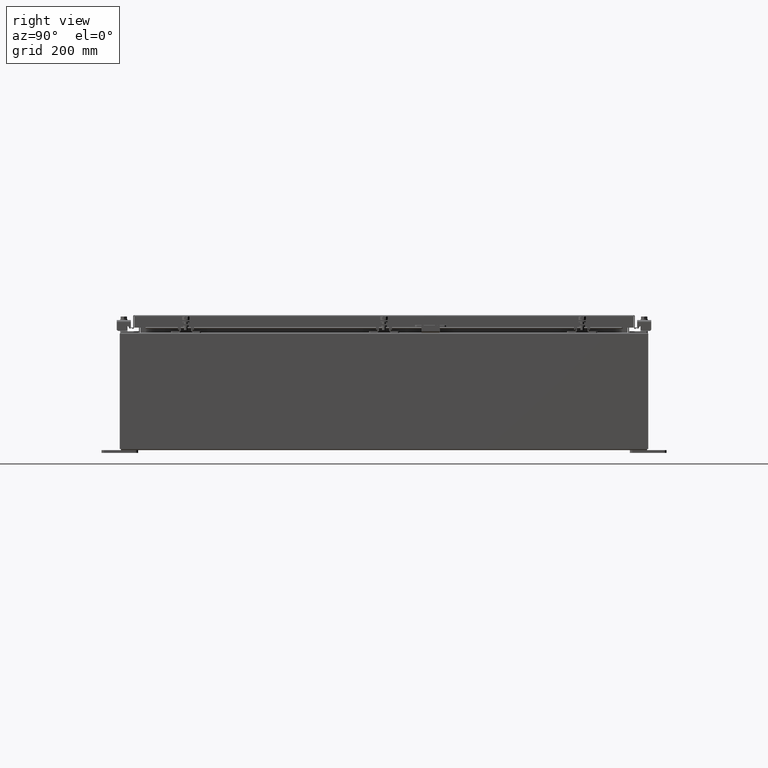
[diagram: clean part render]
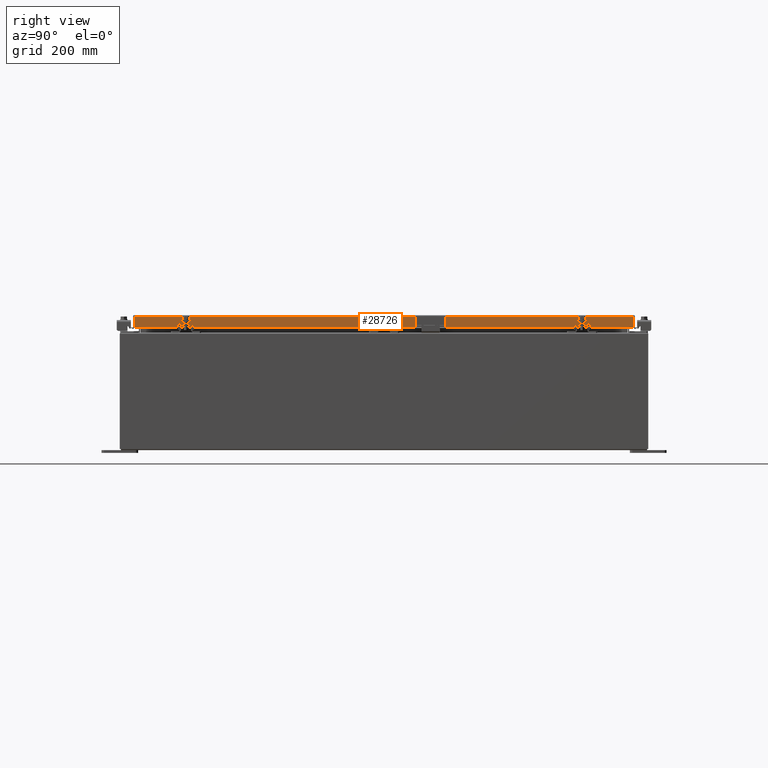
[diagram: same view with one face highlighted and labeled with its STEP entity id]
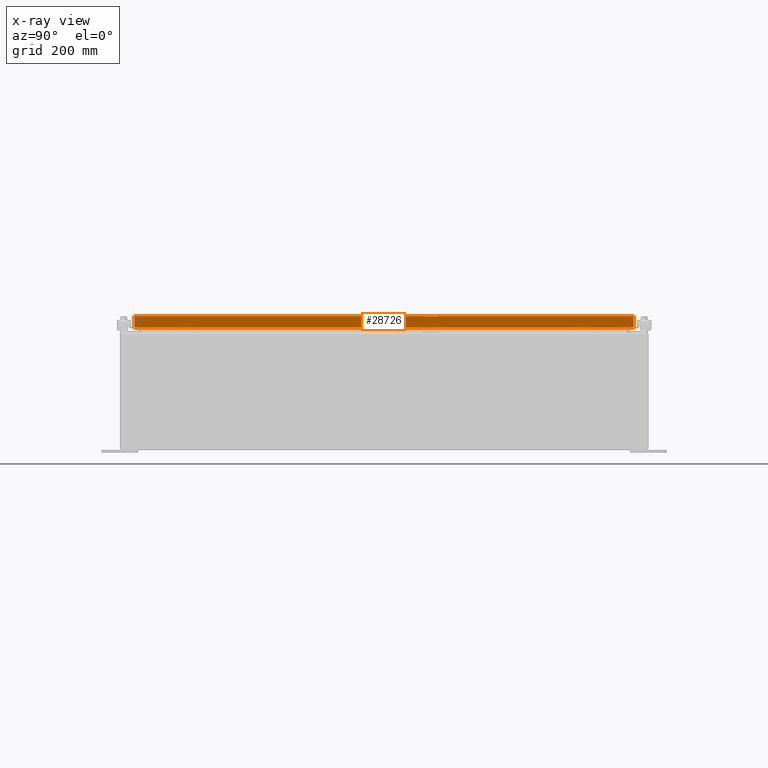
[diagram: x-ray of the same camera — body ghosted, the highlighted face saturated]
A machine part, right view. The second image highlights one B-rep face of the part: STEP entity #28726.
The next image is the same camera in x-ray: the body ghosted, the highlighted face saturated — about 0% of this face is hidden behind the body in this view.
In plain terms, the highlighted planar face has unit normal (1, 0, 0).
Its self-contained STEP definition (entity closure, byte-faithful):
#279 = ORIENTED_EDGE ( 'NONE', *, *, #39395, .T. ) ;
#486 = AXIS2_PLACEMENT_3D ( 'NONE', #30902, #11078, #34396 ) ;
#1084 = ORIENTED_EDGE ( 'NONE', *, *, #32280, .F. ) ;
#1664 = ORIENTED_EDGE ( 'NONE', *, *, #33073, .F. ) ;
#2199 = CARTESIAN_POINT ( 'NONE',  ( 14.07799999999998700, -16.25515786437626500, -0.8500000000000016400 ) ) ;
#6049 = VERTEX_POINT ( 'NONE', #8189 ) ;
#7052 = CARTESIAN_POINT ( 'NONE',  ( 14.07799999999999400, 17.00515786437627200, 1.586914022634635000E-013 ) ) ;
#7078 = LINE ( 'NONE', #19271, #14907 ) ;
#7730 = PLANE ( 'NONE',  #486 ) ;
#7774 = EDGE_CURVE ( 'NONE', #6049, #37862, #20003, .T. ) ;
#8189 = CARTESIAN_POINT ( 'NONE',  ( 14.07799999999999600, 17.00515786437627600, -0.8499999999999996400 ) ) ;
#8603 = VECTOR ( 'NONE', #29248, 39.37007874015748100 ) ;
#9281 = CARTESIAN_POINT ( 'NONE',  ( 14.07799999999999600, -17.09400000000000100, -0.8499999999999996400 ) ) ;
#9628 = VECTOR ( 'NONE', #10398, 39.37007874015748100 ) ;
#10398 = DIRECTION ( 'NONE',  ( -2.818880942772360500E-015, -6.982962677686269100E-015, 1.000000000000000000 ) ) ;
#11078 = DIRECTION ( 'NONE',  ( 1.000000000000000000, 0.0000000000000000000, 2.818880942772360100E-015 ) ) ;
#11113 = VECTOR ( 'NONE', #20378, 39.37007874015748100 ) ;
#13342 = VECTOR ( 'NONE', #13685, 39.37007874015748100 ) ;
#13685 = DIRECTION ( 'NONE',  ( -2.818880942772360500E-015, -6.982962677686269100E-015, 1.000000000000000000 ) ) ;
#14410 = CARTESIAN_POINT ( 'NONE',  ( 14.07799999999999600, -17.00515786437626500, -0.8499999999999996400 ) ) ;
#14907 = VECTOR ( 'NONE', #32523, 39.37007874015748100 ) ;
#18837 = EDGE_LOOP ( 'NONE', ( #37850, #1664, #1084, #34677, #38028, #279 ) ) ;
#19271 = CARTESIAN_POINT ( 'NONE',  ( 14.07799999999999400, 0.0000000000000000000, -0.08770000000000007000 ) ) ;
#19547 = LINE ( 'NONE', #7052, #9628 ) ;
#19837 = EDGE_CURVE ( 'NONE', #24818, #28346, #22221, .T. ) ;
#20003 = LINE ( 'NONE', #40363, #11113 ) ;
#20378 = DIRECTION ( 'NONE',  ( 0.0000000000000000000, -1.000000000000000000, 0.0000000000000000000 ) ) ;
#20411 = CARTESIAN_POINT ( 'NONE',  ( 14.07799999999999400, -17.00515786437626900, -0.07469999999999978000 ) ) ;
#20614 = EDGE_CURVE ( 'NONE', #6049, #29080, #19547, .T. ) ;
#22221 = LINE ( 'NONE', #20411, #13342 ) ;
#24330 = CARTESIAN_POINT ( 'NONE',  ( 14.07799999999998700, 16.25515786437627600, -0.8500000000000016400 ) ) ;
#24463 = VERTEX_POINT ( 'NONE', #2199 ) ;
#24818 = VERTEX_POINT ( 'NONE', #14410 ) ;
#25875 = LINE ( 'NONE', #41453, #42621 ) ;
#28346 = VERTEX_POINT ( 'NONE', #39548 ) ;
#28726 = ADVANCED_FACE ( 'NONE', ( #31972 ), #7730, .T. ) ;
#29080 = VERTEX_POINT ( 'NONE', #32927 ) ;
#29248 = DIRECTION ( 'NONE',  ( 0.0000000000000000000, -1.000000000000000000, 0.0000000000000000000 ) ) ;
#30902 = CARTESIAN_POINT ( 'NONE',  ( 14.07799999999999400, 0.0000000000000000000, 3.994501956836084300E-014 ) ) ;
#31972 = FACE_OUTER_BOUND ( 'NONE', #18837, .T. ) ;
#32280 = EDGE_CURVE ( 'NONE', #37862, #24463, #25875, .T. ) ;
#32523 = DIRECTION ( 'NONE',  ( 0.0000000000000000000, -1.000000000000000000, 0.0000000000000000000 ) ) ;
#32927 = CARTESIAN_POINT ( 'NONE',  ( 14.07799999999999400, 17.00515786437626900, -0.08770000000000007000 ) ) ;
#33073 = EDGE_CURVE ( 'NONE', #24463, #24818, #34178, .T. ) ;
#34178 = LINE ( 'NONE', #9281, #8603 ) ;
#34396 = DIRECTION ( 'NONE',  ( 2.818880942772360100E-015, 0.0000000000000000000, -1.000000000000000000 ) ) ;
#34677 = ORIENTED_EDGE ( 'NONE', *, *, #7774, .F. ) ;
#34854 = DIRECTION ( 'NONE',  ( 0.0000000000000000000, -1.000000000000000000, 0.0000000000000000000 ) ) ;
#37850 = ORIENTED_EDGE ( 'NONE', *, *, #19837, .F. ) ;
#37862 = VERTEX_POINT ( 'NONE', #24330 ) ;
#38028 = ORIENTED_EDGE ( 'NONE', *, *, #20614, .T. ) ;
#39395 = EDGE_CURVE ( 'NONE', #29080, #28346, #7078, .T. ) ;
#39548 = CARTESIAN_POINT ( 'NONE',  ( 14.07799999999999400, -17.00515786437626900, -0.08770000000000007000 ) ) ;
#40363 = CARTESIAN_POINT ( 'NONE',  ( 14.07799999999999600, -17.09400000000000100, -0.8499999999999996400 ) ) ;
#41453 = CARTESIAN_POINT ( 'NONE',  ( 14.07799999999998700, 16.25515786437628000, -0.8500000000000016400 ) ) ;
#42621 = VECTOR ( 'NONE', #34854, 39.37007874015748100 ) ;